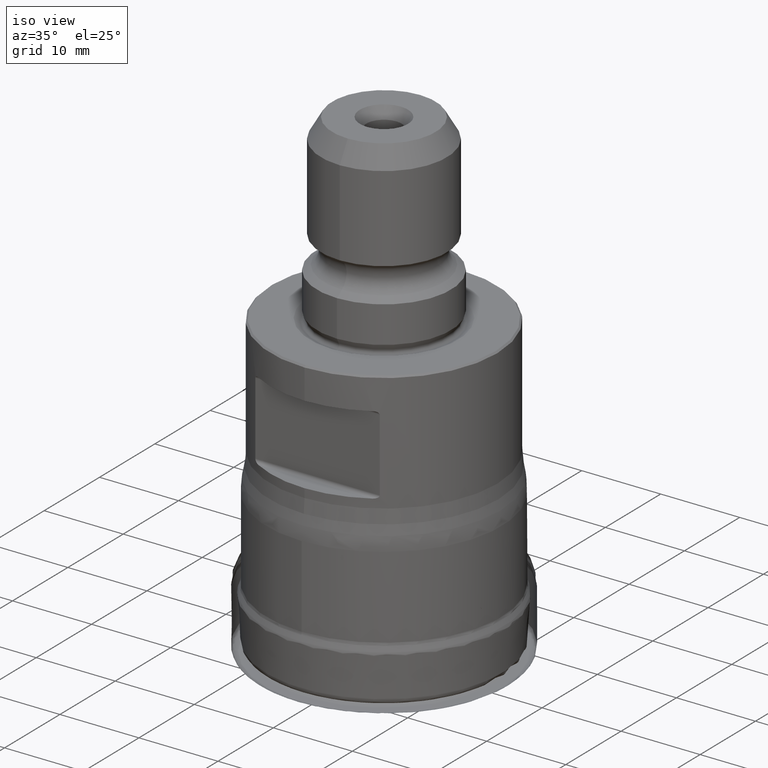
[diagram: clean part render]
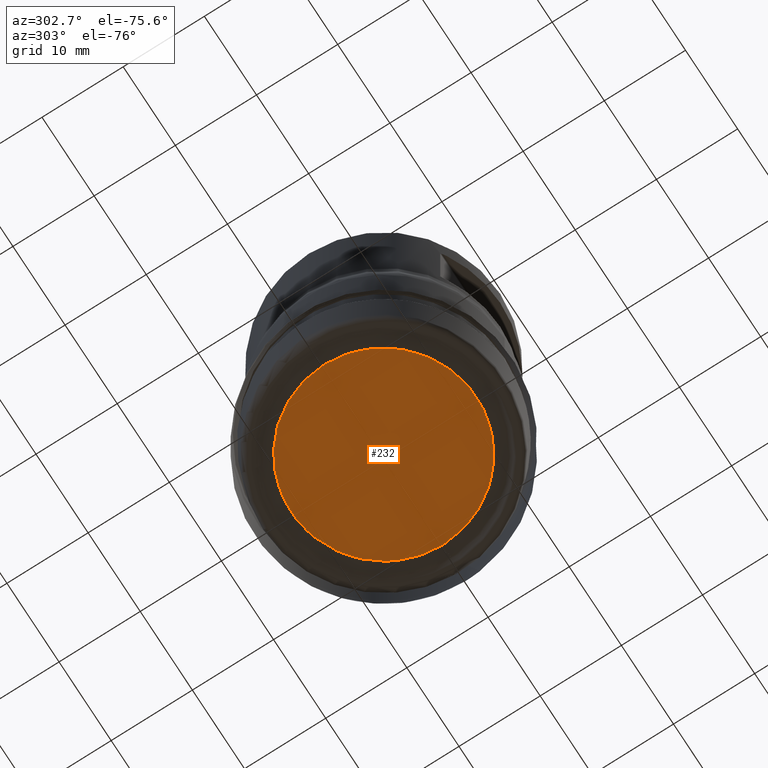
[diagram: tour spotlight — one face highlighted and labeled with its STEP entity id]
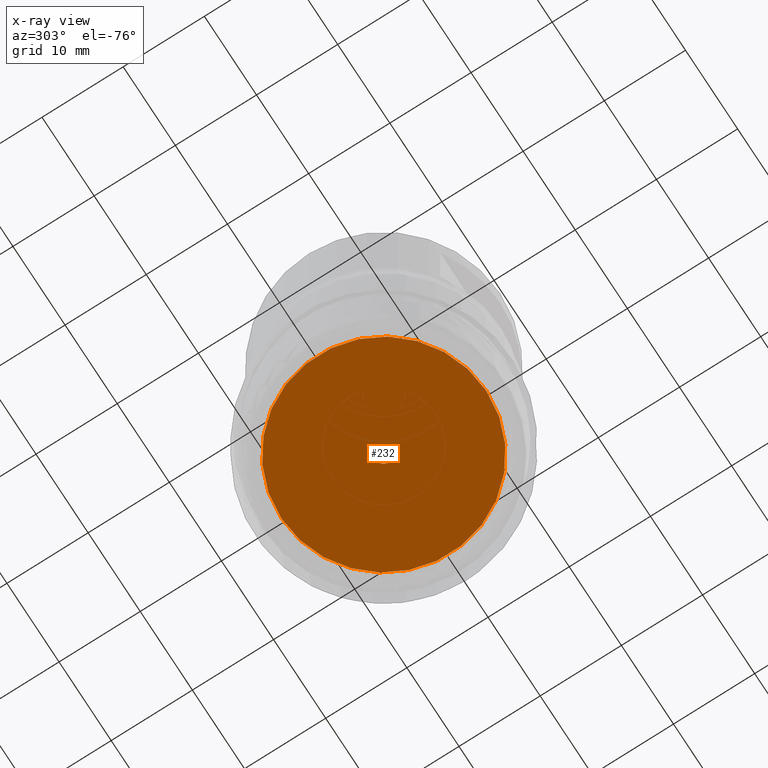
[diagram: x-ray of the same camera — body ghosted, this tour face saturated]
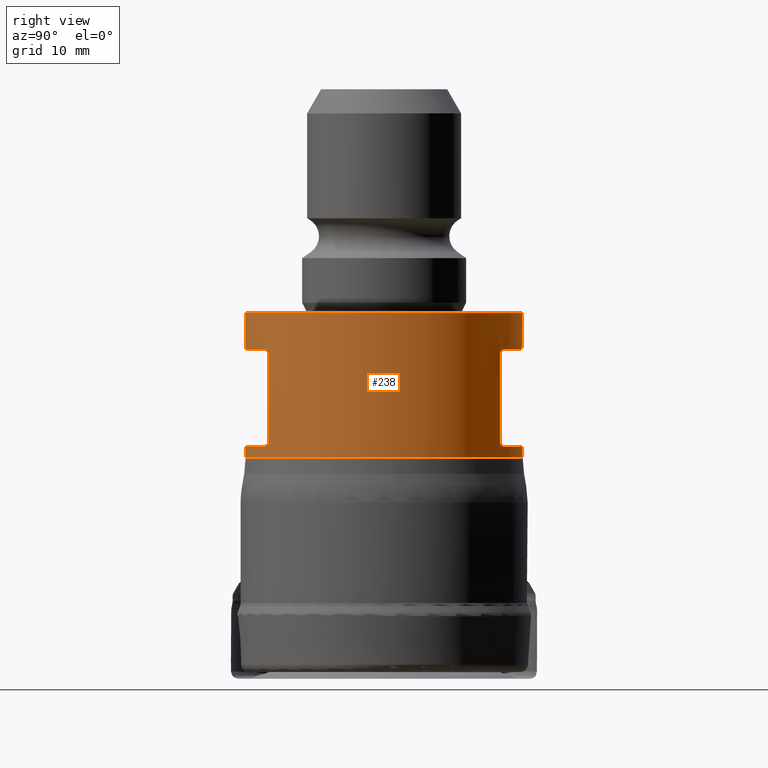
[diagram: tour spotlight — one face highlighted and labeled with its STEP entity id]
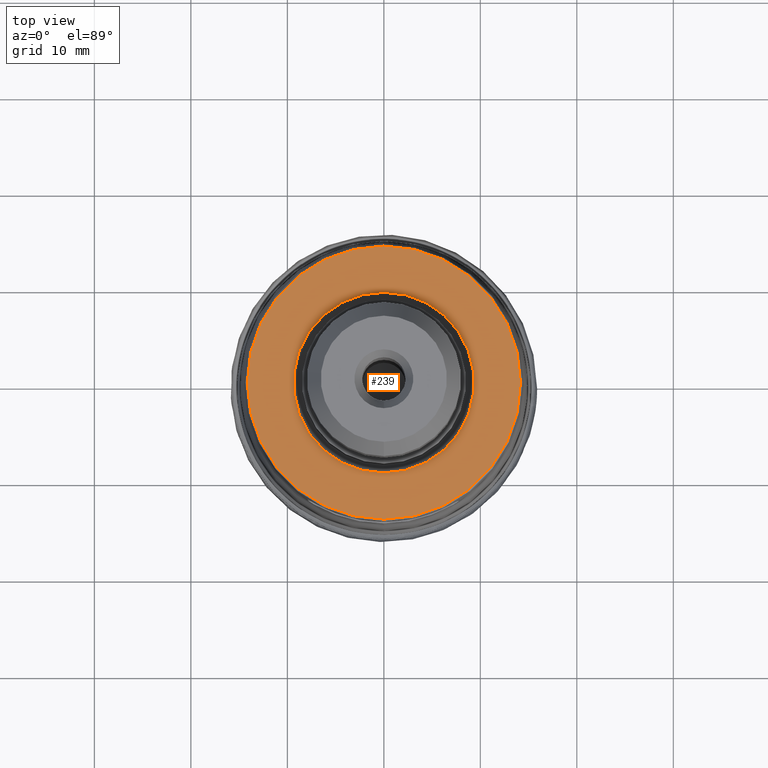
[diagram: tour spotlight — one face highlighted and labeled with its STEP entity id]
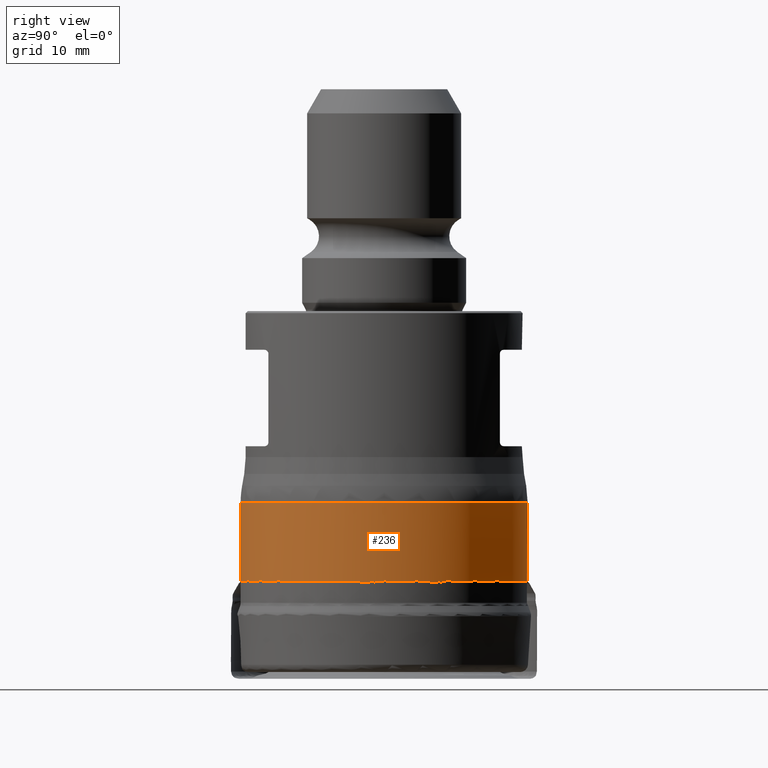
[diagram: tour spotlight — one face highlighted and labeled with its STEP entity id]
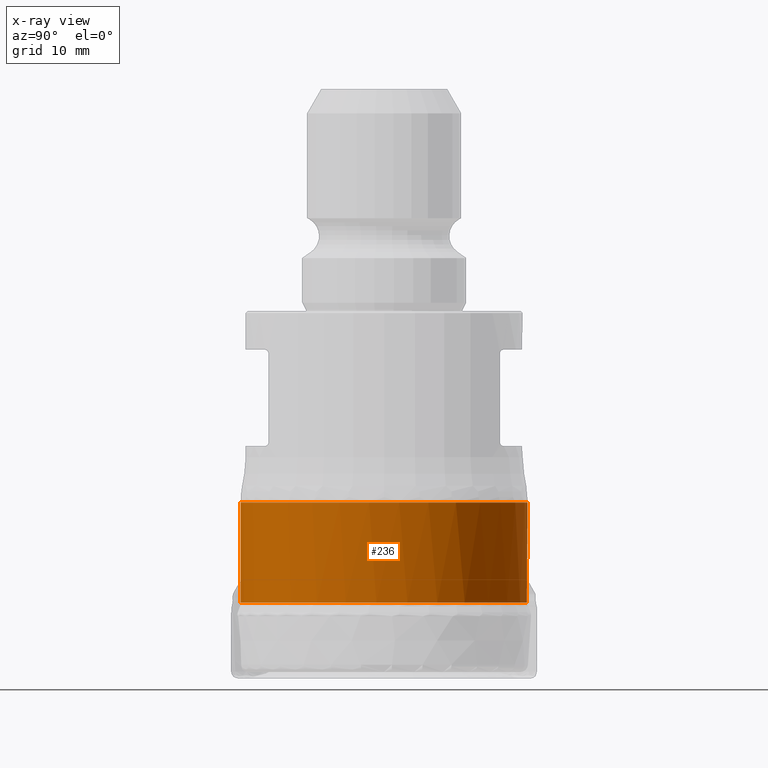
[diagram: x-ray of the same camera — body ghosted, this tour face saturated]
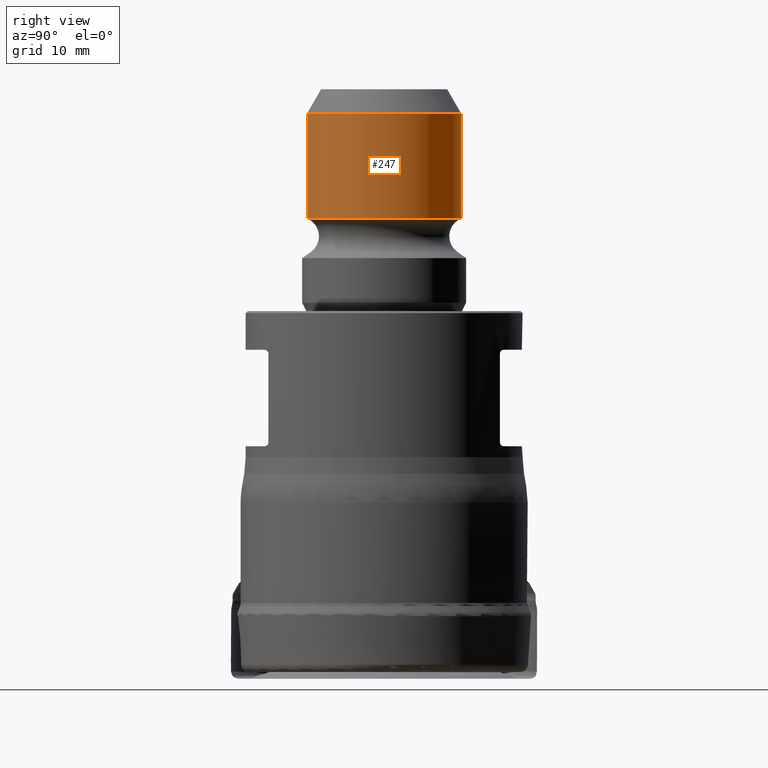
[diagram: tour spotlight — one face highlighted and labeled with its STEP entity id]
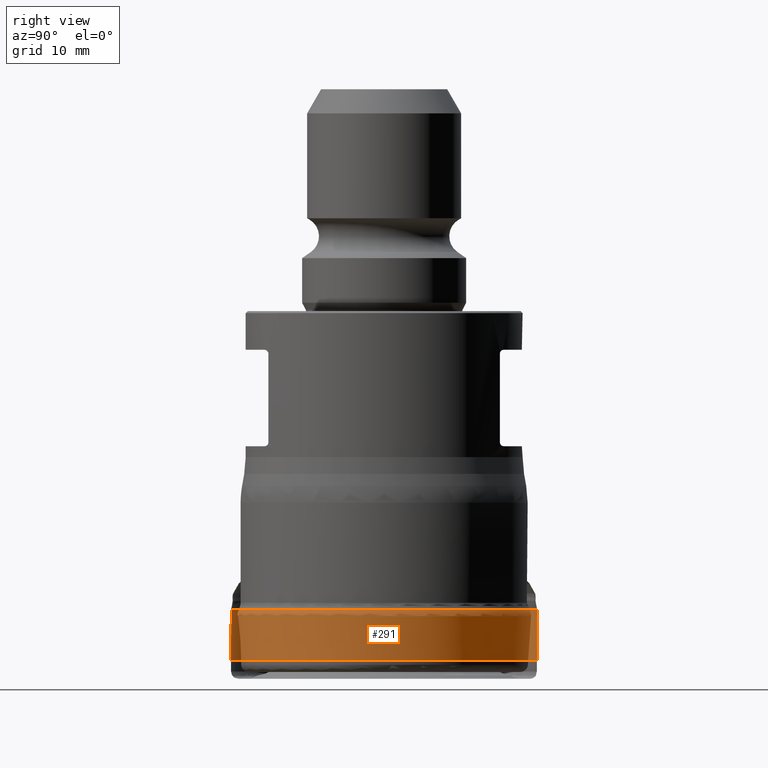
[diagram: tour spotlight — one face highlighted and labeled with its STEP entity id]
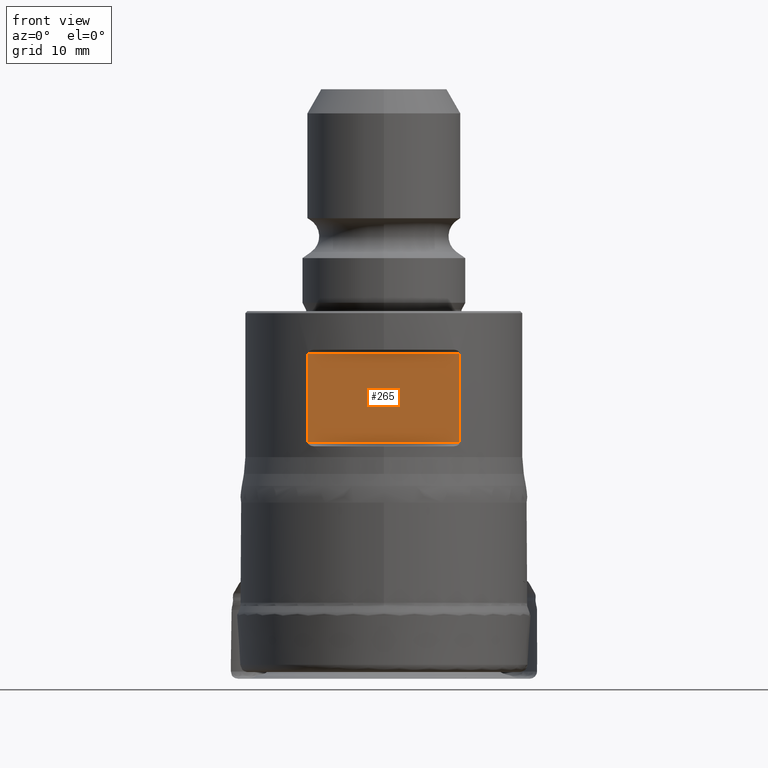
[diagram: tour spotlight — one face highlighted and labeled with its STEP entity id]
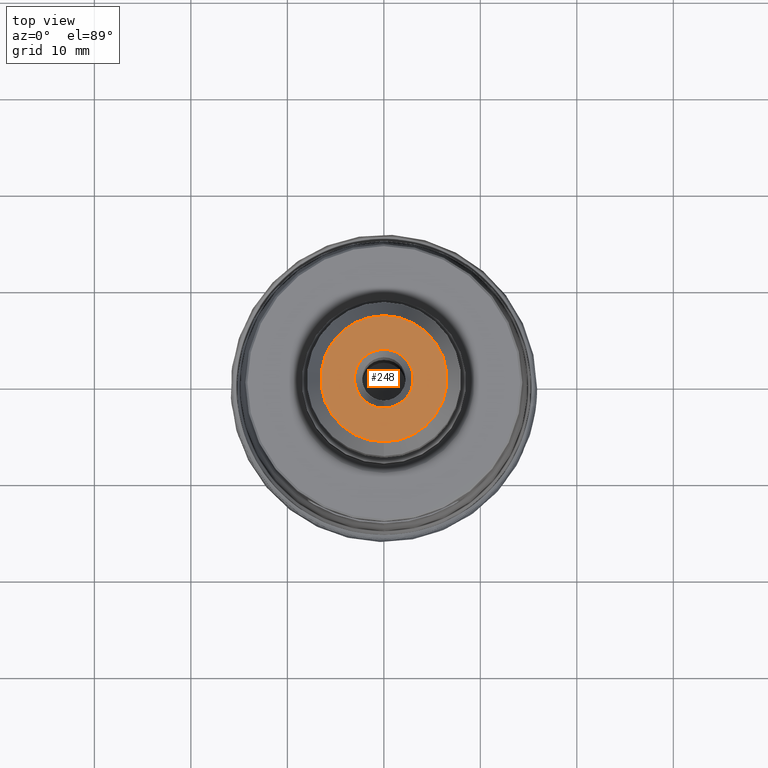
[diagram: tour spotlight — one face highlighted and labeled with its STEP entity id]
A machine part: a face-by-face anatomy tour. The part has 66 B-rep faces; the first image is the clean iso view, then the 8 largest visible faces are spotlighted one at a time (largest first), each with its STEP entity span.

Face 1 — auxiliary view, entity #232. An x-ray twin of the same camera follows (body ghosted, this face saturated) — the face is partly hidden behind the body. In plain terms, the highlighted planar face has unit normal (0, -0, -1).
Definition (entity closure, byte-faithful):
#232=ADVANCED_FACE('',(#308,#309),#298,.T.);
#298=PLANE('',#969);
#308=FACE_BOUND('',#422,.T.);
#309=FACE_BOUND('',#423,.T.);
#422=EDGE_LOOP('',(#544));
#423=EDGE_LOOP('',(#545));
#544=ORIENTED_EDGE('',*,*,#775,.T.);
#545=ORIENTED_EDGE('',*,*,#776,.T.);
#702=VERTEX_POINT('',#1546);
#703=VERTEX_POINT('',#1548);
#775=EDGE_CURVE('',#702,#702,#854,.T.);
#776=EDGE_CURVE('',#703,#703,#855,.T.);
#854=CIRCLE('',#967,1.);
#855=CIRCLE('',#968,12.6336350992954);
#967=AXIS2_PLACEMENT_3D('',#1545,#1069,#1070);
#968=AXIS2_PLACEMENT_3D('',#1547,#1071,#1072);
#969=AXIS2_PLACEMENT_3D('',#1549,#1073,#1074);
#1069=DIRECTION('',(0.,1.17145536458252E-15,1.));
#1070=DIRECTION('',(0.,-1.,1.0842021724855E-15));
#1071=DIRECTION('',(0.,-1.17145536458252E-15,-1.));
#1072=DIRECTION('',(0.,1.,-1.16713435443653E-15));
#1073=DIRECTION('',(0.,-1.17145536458252E-15,-1.));
#1074=DIRECTION('',(0.,1.,-1.17137202715334E-15));
#1545=CARTESIAN_POINT('',(0.,1.28860090104078E-15,1.1));
#1546=CARTESIAN_POINT('',(0.,-0.999999999999999,1.1));
#1547=CARTESIAN_POINT('',(0.,1.28860090104078E-15,1.1));
#1548=CARTESIAN_POINT('',(0.,12.6336350992954,1.09999999999999));
#1549=CARTESIAN_POINT('',(13.2534390020139,1.28860090104078E-15,1.1));

Face 2 — right view, entity #238. In plain terms, the highlighted cylindrical surface (bore or boss wall) has radius 14.351 mm, axis along (0, 0, 1).
Definition (entity closure, byte-faithful):
#179=LINE('',#1593,#194);
#180=LINE('',#1634,#195);
#181=LINE('',#1675,#196);
#182=LINE('',#1716,#197);
#194=VECTOR('',#1105,1.);
#195=VECTOR('',#1108,1.);
#196=VECTOR('',#1111,1.);
#197=VECTOR('',#1114,1.);
#210=CYLINDRICAL_SURFACE('',#991,14.351);
#238=ADVANCED_FACE('',(#320,#321,#322,#323),#210,.T.);
#320=FACE_BOUND('',#434,.T.);
#321=FACE_BOUND('',#435,.T.);
#322=FACE_BOUND('',#436,.T.);
#323=FACE_BOUND('',#437,.T.);
#434=EDGE_LOOP('',(#556,#557,#558,#559,#560,#561,#562,#563));
#435=EDGE_LOOP('',(#564,#565,#566,#567,#568,#569,#570,#571));
#436=EDGE_LOOP('',(#572));
#437=EDGE_LOOP('',(#573));
#556=ORIENTED_EDGE('',*,*,#787,.F.);
#557=ORIENTED_EDGE('',*,*,#788,.F.);
#558=ORIENTED_EDGE('',*,*,#789,.F.);
#559=ORIENTED_EDGE('',*,*,#790,.F.);
#560=ORIENTED_EDGE('',*,*,#791,.F.);
#561=ORIENTED_EDGE('',*,*,#792,.F.);
#562=ORIENTED_EDGE('',*,*,#793,.F.);
#563=ORIENTED_EDGE('',*,*,#794,.F.);
#564=ORIENTED_EDGE('',*,*,#795,.F.);
#565=ORIENTED_EDGE('',*,*,#796,.F.);
#566=ORIENTED_EDGE('',*,*,#797,.F.);
#567=ORIENTED_EDGE('',*,*,#798,.F.);
#568=ORIENTED_EDGE('',*,*,#799,.F.);
#569=ORIENTED_EDGE('',*,*,#800,.F.);
#570=ORIENTED_EDGE('',*,*,#801,.F.);
#571=ORIENTED_EDGE('',*,*,#802,.F.);
#572=ORIENTED_EDGE('',*,*,#803,.T.);
#573=ORIENTED_EDGE('',*,*,#804,.T.);
#714=VERTEX_POINT('',#1591);
#715=VERTEX_POINT('',#1592);
#716=VERTEX_POINT('',#1594);
#717=VERTEX_POINT('',#1614);
#718=VERTEX_POINT('',#1616);
#719=VERTEX_POINT('',#1633);
#720=VERTEX_POINT('',#1635);
#721=VERTEX_POINT('',#1655);
#722=VERTEX_POINT('',#1673);
#723=VERTEX_POINT('',#1674);
#724=VERTEX_POINT('',#1676);
#725=VERTEX_POINT('',#1696);
#726=VERTEX_POINT('',#1698);
#727=VERTEX_POINT('',#1715);
#728=VERTEX_POINT('',#1717);
#729=VERTEX_POINT('',#1737);
#730=VERTEX_POINT('',#1740);
#731=VERTEX_POINT('',#1742);
#787=EDGE_CURVE('',#714,#715,#937,.T.);
#788=EDGE_CURVE('',#716,#714,#179,.T.);
#789=EDGE_CURVE('',#717,#716,#938,.T.);
#790=EDGE_CURVE('',#718,#717,#866,.T.);
#791=EDGE_CURVE('',#719,#718,#939,.T.);
#792=EDGE_CURVE('',#720,#719,#180,.T.);
#793=EDGE_CURVE('',#721,#720,#940,.T.);
#794=EDGE_CURVE('',#715,#721,#867,.T.);
#795=EDGE_CURVE('',#722,#723,#941,.T.);
#796=EDGE_CURVE('',#724,#722,#181,.T.);
#797=EDGE_CURVE('',#725,#724,#942,.T.);
#798=EDGE_CURVE('',#726,#725,#868,.T.);
#799=EDGE_CURVE('',#727,#726,#943,.T.);
#800=EDGE_CURVE('',#728,#727,#182,.T.);
#801=EDGE_CURVE('',#729,#728,#944,.T.);
#802=EDGE_CURVE('',#723,#729,#869,.T.);
#803=EDGE_CURVE('',#730,#730,#870,.T.);
#804=EDGE_CURVE('',#731,#731,#871,.T.);
#866=CIRCLE('',#985,14.351);
#867=CIRCLE('',#986,14.351);
#868=CIRCLE('',#987,14.351);
#869=CIRCLE('',#988,14.351);
#870=CIRCLE('',#989,14.351);
#871=CIRCLE('',#990,14.351);
#937=B_SPLINE_CURVE_WITH_KNOTS('',3,(#1575,#1576,#1577,#1578,#1579,#1580,
#1581,#1582,#1583,#1584,#1585,#1586,#1587,#1588,#1589,#1590),
 .UNSPECIFIED.,.F.,.F.,(4,3,3,3,3,4),(0.,0.08299710580572,0.165298494452553,
0.304093107345201,0.539202657462014,1.),.UNSPECIFIED.);
#938=B_SPLINE_CURVE_WITH_KNOTS('',3,(#1595,#1596,#1597,#1598,#1599,#1600,
#1601,#1602,#1603,#1604,#1605,#1606,#1607,#1608,#1609,#1610,#1611,#1612,
#1613),.UNSPECIFIED.,.F.,.F.,(4,3,3,3,3,3,4),(0.,0.435512366815006,0.601766218517153,
0.769567222104373,0.872602562670462,0.96029760340768,1.),.UNSPECIFIED.);
#939=B_SPLINE_CURVE_WITH_KNOTS('',3,(#1617,#1618,#1619,#1620,#1621,#1622,
#1623,#1624,#1625,#1626,#1627,#1628,#1629,#1630,#1631,#1632),
 .UNSPECIFIED.,.F.,.F.,(4,3,3,3,3,4),(0.,0.0829971058057228,0.16529849445256,
0.304093107345228,0.539202657462062,1.),.UNSPECIFIED.);
#940=B_SPLINE_CURVE_WITH_KNOTS('',3,(#1636,#1637,#1638,#1639,#1640,#1641,
#1642,#1643,#1644,#1645,#1646,#1647,#1648,#1649,#1650,#1651,#1652,#1653,
#1654),.UNSPECIFIED.,.F.,.F.,(4,3,3,3,3,3,4),(0.,0.435512366814994,0.601766218517142,
0.769567222104363,0.872602562670449,0.960297603407666,1.),.UNSPECIFIED.);
#941=B_SPLINE_CURVE_WITH_KNOTS('',3,(#1657,#1658,#1659,#1660,#1661,#1662,
#1663,#1664,#1665,#1666,#1667,#1668,#1669,#1670,#1671,#1672),
 .UNSPECIFIED.,.F.,.F.,(4,3,3,3,3,4),(0.,0.0829971058057196,0.165298494452553,
0.304093107345207,0.539202657462025,1.),.UNSPECIFIED.);
#942=B_SPLINE_CURVE_WITH_KNOTS('',3,(#1677,#1678,#1679,#1680,#1681,#1682,
#1683,#1684,#1685,#1686,#1687,#1688,#1689,#1690,#1691,#1692,#1693,#1694,
#1695),.UNSPECIFIED.,.F.,.F.,(4,3,3,3,3,3,4),(0.,0.435512366815006,0.601766218517161,
0.769567222104385,0.872602562670471,0.960297603407687,1.),.UNSPECIFIED.);
#943=B_SPLINE_CURVE_WITH_KNOTS('',3,(#1699,#1700,#1701,#1702,#1703,#1704,
#1705,#1706,#1707,#1708,#1709,#1710,#1711,#1712,#1713,#1714),
 .UNSPECIFIED.,.F.,.F.,(4,3,3,3,3,4),(0.,0.0829971058057233,0.165298494452562,
0.304093107345216,0.539202657462044,1.),.UNSPECIFIED.);
#944=B_SPLINE_CURVE_WITH_KNOTS('',3,(#1718,#1719,#1720,#1721,#1722,#1723,
#1724,#1725,#1726,#1727,#1728,#1729,#1730,#1731,#1732,#1733,#1734,#1735,
#1736),.UNSPECIFIED.,.F.,.F.,(4,3,3,3,3,3,4),(0.,0.435512366814993,0.601766218517143,
0.769567222104368,0.872602562670451,0.960297603407663,1.),.UNSPECIFIED.);
#985=AXIS2_PLACEMENT_3D('',#1615,#1106,#1107);
#986=AXIS2_PLACEMENT_3D('',#1656,#1109,#1110);
#987=AXIS2_PLACEMENT_3D('',#1697,#1112,#1113);
#988=AXIS2_PLACEMENT_3D('',#1738,#1115,#1116);
#989=AXIS2_PLACEMENT_3D('',#1739,#1117,#1118);
#990=AXIS2_PLACEMENT_3D('',#1741,#1119,#1120);
#991=AXIS2_PLACEMENT_3D('',#1743,#1121,#1122);
#1105=DIRECTION('',(0.,-1.17145536458252E-15,-1.));
#1106=DIRECTION('',(0.,-1.17145536458252E-15,-1.));
#1107=DIRECTION('',(0.,-1.,9.67025838465226E-16));
#1108=DIRECTION('',(0.,1.17145536458252E-15,1.));
#1109=DIRECTION('',(0.,1.17145536458252E-15,1.));
#1110=DIRECTION('',(0.,1.,-1.20878229808153E-15));
#1111=DIRECTION('',(0.,-1.17145536458252E-15,-1.));
#1112=DIRECTION('',(0.,-1.17145536458252E-15,-1.));
#1113=DIRECTION('',(0.,-1.,9.67025838465226E-16));
#1114=DIRECTION('',(0.,1.17145536458252E-15,1.));
#1115=DIRECTION('',(0.,1.17145536458252E-15,1.));
#1116=DIRECTION('',(0.,1.,-1.20878229808153E-15));
#1117=DIRECTION('',(0.,-1.17145536458252E-15,-1.));
#1118=DIRECTION('',(0.,-1.,9.67025838465226E-16));
#1119=DIRECTION('',(0.,1.17145536458252E-15,1.));
#1120=DIRECTION('',(0.,-1.,1.20878229808153E-15));
#1121=DIRECTION('',(0.,1.17145536458252E-15,1.));
#1122=DIRECTION('',(0.,-1.,1.17145536458252E-15));
#1575=CARTESIAN_POINT('',(7.87090852443352,12.,24.5));
#1576=CARTESIAN_POINT('',(7.87090852443352,12.,24.4740322290177));
#1577=CARTESIAN_POINT('',(7.86687749301789,12.0026461944081,24.4477413843241));
#1578=CARTESIAN_POINT('',(7.85957575356462,12.0074256180907,24.4232839347432));
#1579=CARTESIAN_POINT('',(7.8523090087322,12.0121821357081,24.3989437009545));
#1580=CARTESIAN_POINT('',(7.84173683060234,12.0190927297264,24.375826348514));
#1581=CARTESIAN_POINT('',(7.82914982339087,12.0272862293578,24.3547951613284));
#1582=CARTESIAN_POINT('',(7.80804791983691,12.0410224921632,24.3195367336369));
#1583=CARTESIAN_POINT('',(7.78087951408832,12.0586206559712,24.2891084719029));
#1584=CARTESIAN_POINT('',(7.75151901647613,12.0774647147988,24.263418111851));
#1585=CARTESIAN_POINT('',(7.70195909105648,12.1092731045078,24.2200533043128));
#1586=CARTESIAN_POINT('',(7.64468901891067,12.1455636071234,24.1882902735915));
#1587=CARTESIAN_POINT('',(7.58597245533121,12.1821271913799,24.1645429397613));
#1588=CARTESIAN_POINT('',(7.47167272849779,12.2533031498794,24.1183155448944));
#1589=CARTESIAN_POINT('',(7.34735730916321,12.3283335852071,24.1));
#1590=CARTESIAN_POINT('',(7.22434779063137,12.4,24.1));
#1591=CARTESIAN_POINT('',(7.87090852443352,12.,24.5));
#1592=CARTESIAN_POINT('',(7.22434779063137,12.4,24.1));
#1593=CARTESIAN_POINT('',(7.87090852443351,12.,-1.19757962038181E-14));
#1594=CARTESIAN_POINT('',(7.87090852443352,12.,33.7));
#1595=CARTESIAN_POINT('',(7.22434779063137,12.4,34.1));
#1596=CARTESIAN_POINT('',(7.34073896794431,12.3321894883331,34.1));
#1597=CARTESIAN_POINT('',(7.45806175716986,12.2615252914713,34.0834933739461));
#1598=CARTESIAN_POINT('',(7.56716152291767,12.1938208731339,34.0427683877559));
#1599=CARTESIAN_POINT('',(7.60922910680053,12.1677148473498,34.0270653130432));
#1600=CARTESIAN_POINT('',(7.65038818931735,12.1418638913689,34.0075197134806));
#1601=CARTESIAN_POINT('',(7.68905559151899,12.117327473933,33.9830127965426));
#1602=CARTESIAN_POINT('',(7.72792286213209,12.0926642299068,33.9583792054999));
#1603=CARTESIAN_POINT('',(7.76498824079194,12.0688659768356,33.9282809305083));
#1604=CARTESIAN_POINT('',(7.79603384607914,12.0487782480544,33.8914243478773));
#1605=CARTESIAN_POINT('',(7.81516799510663,12.036397700387,33.8687087545371));
#1606=CARTESIAN_POINT('',(7.83226831836126,12.0252656100682,33.8429753481524));
#1607=CARTESIAN_POINT('',(7.84521353459981,12.0168142865126,33.814754995443));
#1608=CARTESIAN_POINT('',(7.85621846575662,12.0096296839382,33.7907644314335));
#1609=CARTESIAN_POINT('',(7.86436481375197,12.004290418292,33.7643991819155));
#1610=CARTESIAN_POINT('',(7.86823088391459,12.0017558614318,33.7374380300775));
#1611=CARTESIAN_POINT('',(7.8700010488916,12.0005953590102,33.7250932756587));
#1612=CARTESIAN_POINT('',(7.87090852443368,12.,33.7125249036555));
#1613=CARTESIAN_POINT('',(7.87090852443369,12.,33.7));
#1614=CARTESIAN_POINT('',(7.22434779063137,12.4,34.1));
#1615=CARTESIAN_POINT('',(0.,3.99466279322641E-14,34.1));
#1616=CARTESIAN_POINT('',(-7.22434779063131,12.4000000000001,34.1));
#1617=CARTESIAN_POINT('',(-7.87090852443347,12.0000000000001,33.7));
#1618=CARTESIAN_POINT('',(-7.87090852443347,12.0000000000001,33.7259677709822));
#1619=CARTESIAN_POINT('',(-7.86687749301785,12.0026461944081,33.7522586156758));
#1620=CARTESIAN_POINT('',(-7.85957575356457,12.0074256180907,33.7767160652568));
#1621=CARTESIAN_POINT('',(-7.85230900873216,12.0121821357081,33.8010562990454));
#1622=CARTESIAN_POINT('',(-7.84173683060229,12.0190927297264,33.824173651486));
#1623=CARTESIAN_POINT('',(-7.82914982339081,12.0272862293578,33.8452048386716));
#1624=CARTESIAN_POINT('',(-7.80804791983685,12.0410224921633,33.880463266363));
#1625=CARTESIAN_POINT('',(-7.78087951408825,12.0586206559712,33.9108915280971));
#1626=CARTESIAN_POINT('',(-7.75151901647606,12.0774647147988,33.936581888149));
#1627=CARTESIAN_POINT('',(-7.7019590910564,12.1092731045079,33.9799466956872));
#1628=CARTESIAN_POINT('',(-7.64468901891059,12.1455636071234,34.0117097264085));
#1629=CARTESIAN_POINT('',(-7.58597245533112,12.1821271913799,34.0354570602387));
#1630=CARTESIAN_POINT('',(-7.47167272849771,12.2533031498795,34.0816844551055));
#1631=CARTESIAN_POINT('',(-7.34735730916314,12.3283335852072,34.1));
#1632=CARTESIAN_POINT('',(-7.22434779063131,12.4000000000001,34.1));
#1633=CARTESIAN_POINT('',(-7.87090852443347,12.0000000000001,33.7));
#1634=CARTESIAN_POINT('',(-7.87090852443346,12.,-1.19757962038181E-14));
#1635=CARTESIAN_POINT('',(-7.87090852443347,12.,24.5));
#1636=CARTESIAN_POINT('',(-7.22434779063131,12.4,24.1));
#1637=CARTESIAN_POINT('',(-7.34073896794426,12.3321894883331,24.1));
#1638=CARTESIAN_POINT('',(-7.45806175716981,12.2615252914713,24.1165066260539));
#1639=CARTESIAN_POINT('',(-7.56716152291761,12.1938208731339,24.157231612244));
#1640=CARTESIAN_POINT('',(-7.60922910680047,12.1677148473498,24.1729346869568));
#1641=CARTESIAN_POINT('',(-7.65038818931729,12.1418638913689,24.1924802865194));
#1642=CARTESIAN_POINT('',(-7.68905559151893,12.117327473933,24.2169872034573));
#1643=CARTESIAN_POINT('',(-7.72792286213204,12.0926642299068,24.2416207945001));
#1644=CARTESIAN_POINT('',(-7.76498824079189,12.0688659768356,24.2717190694917));
#1645=CARTESIAN_POINT('',(-7.79603384607909,12.0487782480544,24.3085756521226));
#1646=CARTESIAN_POINT('',(-7.81516799510658,12.036397700387,24.3312912454629));
#1647=CARTESIAN_POINT('',(-7.83226831836121,12.0252656100682,24.3570246518476));
#1648=CARTESIAN_POINT('',(-7.84521353459976,12.0168142865126,24.385245004557));
#1649=CARTESIAN_POINT('',(-7.85621846575656,12.0096296839382,24.4092355685665));
#1650=CARTESIAN_POINT('',(-7.86436481375192,12.0042904182921,24.4356008180844));
#1651=CARTESIAN_POINT('',(-7.86823088391453,12.0017558614319,24.4625619699224));
#1652=CARTESIAN_POINT('',(-7.87000104889154,12.0005953590102,24.4749067243413));
#1653=CARTESIAN_POINT('',(-7.87090852443346,12.0000000000001,24.4874750963445));
#1654=CARTESIAN_POINT('',(-7.87090852443347,12.,24.5));
#1655=CARTESIAN_POINT('',(-7.22434779063131,12.4,24.1));
#1656=CARTESIAN_POINT('',(0.,2.82320742864388E-14,24.1));
#1657=CARTESIAN_POINT('',(-7.87090852443349,-12.,24.5));
#1658=CARTESIAN_POINT('',(-7.87090852443349,-12.,24.4740322290178));
#1659=CARTESIAN_POINT('',(-7.86687749301787,-12.002646194408,24.4477413843242));
#1660=CARTESIAN_POINT('',(-7.85957575356459,-12.0074256180906,24.4232839347432));
#1661=CARTESIAN_POINT('',(-7.85230900873218,-12.012182135708,24.3989437009546));
#1662=CARTESIAN_POINT('',(-7.84173683060232,-12.0190927297264,24.3758263485141));
#1663=CARTESIAN_POINT('',(-7.82914982339084,-12.0272862293577,24.3547951613284));
#1664=CARTESIAN_POINT('',(-7.80804791983688,-12.0410224921632,24.319536733637));
#1665=CARTESIAN_POINT('',(-7.78087951408829,-12.0586206559711,24.2891084719029));
#1666=CARTESIAN_POINT('',(-7.7515190164761,-12.0774647147987,24.263418111851));
#1667=CARTESIAN_POINT('',(-7.70195909105645,-12.1092731045078,24.2200533043128));
#1668=CARTESIAN_POINT('',(-7.64468901891063,-12.1455636071233,24.1882902735915));
#1669=CARTESIAN_POINT('',(-7.58597245533117,-12.1821271913798,24.1645429397613));
#1670=CARTESIAN_POINT('',(-7.47167272849776,-12.2533031498794,24.1183155448945));
#1671=CARTESIAN_POINT('',(-7.34735730916317,-12.3283335852071,24.1));
#1672=CARTESIAN_POINT('',(-7.22434779063134,-12.4,24.1));
#1673=CARTESIAN_POINT('',(-7.87090852443349,-12.,24.5));
#1674=CARTESIAN_POINT('',(-7.22434779063134,-12.4,24.1));
#1675=CARTESIAN_POINT('',(-7.87090852443349,-12.,1.61391325461625E-14));
#1676=CARTESIAN_POINT('',(-7.87090852443349,-12.,33.7));
#1677=CARTESIAN_POINT('',(-7.22434779063134,-12.4,34.1));
#1678=CARTESIAN_POINT('',(-7.34073896794428,-12.332189488333,34.1));
#1679=CARTESIAN_POINT('',(-7.45806175716983,-12.2615252914712,34.0834933739461));
#1680=CARTESIAN_POINT('',(-7.56716152291764,-12.1938208731338,34.042768387756));
#1681=CARTESIAN_POINT('',(-7.6092291068005,-12.1677148473497,34.0270653130432));
#1682=CARTESIAN_POINT('',(-7.65038818931732,-12.1418638913688,34.0075197134806));
#1683=CARTESIAN_POINT('',(-7.68905559151896,-12.1173274739329,33.9830127965427));
#1684=CARTESIAN_POINT('',(-7.72792286213207,-12.0926642299067,33.9583792054999));
#1685=CARTESIAN_POINT('',(-7.76498824079192,-12.0688659768355,33.9282809305083));
#1686=CARTESIAN_POINT('',(-7.79603384607912,-12.0487782480544,33.8914243478773));
#1687=CARTESIAN_POINT('',(-7.81516799510661,-12.0363977003869,33.8687087545371));
#1688=CARTESIAN_POINT('',(-7.83226831836124,-12.0252656100681,33.8429753481524));
#1689=CARTESIAN_POINT('',(-7.84521353459979,-12.0168142865125,33.814754995443));
#1690=CARTESIAN_POINT('',(-7.85621846575659,-12.0096296839381,33.7907644314335));
#1691=CARTESIAN_POINT('',(-7.86436481375195,-12.004290418292,33.7643991819156));
#1692=CARTESIAN_POINT('',(-7.86823088391456,-12.0017558614318,33.7374380300775));
#1693=CARTESIAN_POINT('',(-7.87000104889157,-12.0005953590101,33.7250932756587));
#1694=CARTESIAN_POINT('',(-7.87090852443366,-11.9999999999999,33.7125249036555));
#1695=CARTESIAN_POINT('',(-7.87090852443366,-11.9999999999999,33.7000000000001));
#1696=CARTESIAN_POINT('',(-7.22434779063134,-12.4,34.1));
#1697=CARTESIAN_POINT('',(0.,3.99466279322641E-14,34.1));
#1698=CARTESIAN_POINT('',(7.22434779063134,-12.4,34.1));
#1699=CARTESIAN_POINT('',(7.8709085244335,-12.,33.7));
#1700=CARTESIAN_POINT('',(7.8709085244335,-12.,33.7259677709823));
#1701=CARTESIAN_POINT('',(7.86687749301787,-12.002646194408,33.7522586156758));
#1702=CARTESIAN_POINT('',(7.8595757535646,-12.0074256180906,33.7767160652568));
#1703=CARTESIAN_POINT('',(7.85230900873218,-12.012182135708,33.8010562990455));
#1704=CARTESIAN_POINT('',(7.84173683060232,-12.0190927297263,33.824173651486));
#1705=CARTESIAN_POINT('',(7.82914982339084,-12.0272862293577,33.8452048386716));
#1706=CARTESIAN_POINT('',(7.80804791983688,-12.0410224921632,33.8804632663631));
#1707=CARTESIAN_POINT('',(7.78087951408829,-12.0586206559711,33.9108915280971));
#1708=CARTESIAN_POINT('',(7.7515190164761,-12.0774647147987,33.9365818881491));
#1709=CARTESIAN_POINT('',(7.70195909105644,-12.1092731045078,33.9799466956872));
#1710=CARTESIAN_POINT('',(7.64468901891063,-12.1455636071233,34.0117097264085));
#1711=CARTESIAN_POINT('',(7.58597245533117,-12.1821271913798,34.0354570602387));
#1712=CARTESIAN_POINT('',(7.47167272849776,-12.2533031498794,34.0816844551056));
#1713=CARTESIAN_POINT('',(7.34735730916317,-12.3283335852071,34.1));
#1714=CARTESIAN_POINT('',(7.22434779063134,-12.4,34.1));
#1715=CARTESIAN_POINT('',(7.8709085244335,-12.,33.7));
#1716=CARTESIAN_POINT('',(7.87090852443349,-12.,1.61391325461625E-14));
#1717=CARTESIAN_POINT('',(7.87090852443349,-12.,24.5));
#1718=CARTESIAN_POINT('',(7.22434779063134,-12.4,24.1));
#1719=CARTESIAN_POINT('',(7.34073896794429,-12.3321894883331,24.1));
#1720=CARTESIAN_POINT('',(7.45806175716984,-12.2615252914712,24.1165066260539));
#1721=CARTESIAN_POINT('',(7.56716152291764,-12.1938208731338,24.1572316122441));
#1722=CARTESIAN_POINT('',(7.6092291068005,-12.1677148473497,24.1729346869568));
#1723=CARTESIAN_POINT('',(7.65038818931732,-12.1418638913689,24.1924802865194));
#1724=CARTESIAN_POINT('',(7.68905559151896,-12.1173274739329,24.2169872034574));
#1725=CARTESIAN_POINT('',(7.72792286213207,-12.0926642299068,24.2416207945001));
#1726=CARTESIAN_POINT('',(7.76498824079192,-12.0688659768355,24.2717190694917));
#1727=CARTESIAN_POINT('',(7.79603384607912,-12.0487782480544,24.3085756521227));
#1728=CARTESIAN_POINT('',(7.81516799510661,-12.0363977003869,24.3312912454629));
#1729=CARTESIAN_POINT('',(7.83226831836124,-12.0252656100681,24.3570246518476));
#1730=CARTESIAN_POINT('',(7.84521353459979,-12.0168142865125,24.385245004557));
#1731=CARTESIAN_POINT('',(7.85621846575659,-12.0096296839381,24.4092355685666));
#1732=CARTESIAN_POINT('',(7.86436481375195,-12.004290418292,24.4356008180845));
#1733=CARTESIAN_POINT('',(7.86823088391456,-12.0017558614318,24.4625619699225));
#1734=CARTESIAN_POINT('',(7.87000104889157,-12.0005953590101,24.4749067243413));
#1735=CARTESIAN_POINT('',(7.87090852443349,-12.,24.4874750963446));
#1736=CARTESIAN_POINT('',(7.87090852443349,-12.,24.5));
#1737=CARTESIAN_POINT('',(7.22434779063134,-12.4,24.1));
#1738=CARTESIAN_POINT('',(0.,2.82320742864388E-14,24.1));
#1739=CARTESIAN_POINT('',(0.,4.43981583176777E-14,37.9));
#1740=CARTESIAN_POINT('',(0.,-14.351,37.9));
#1741=CARTESIAN_POINT('',(0.,2.69140541995498E-14,22.9748866352592));
#1742=CARTESIAN_POINT('',(0.,-14.351,22.9748866352593));
#1743=CARTESIAN_POINT('',(0.,0.,0.));

Face 3 — top view, entity #239. In plain terms, the highlighted planar face has unit normal (0, 0, 1).
Definition (entity closure, byte-faithful):
#239=ADVANCED_FACE('',(#324,#325),#300,.T.);
#300=PLANE('',#994);
#324=FACE_BOUND('',#438,.T.);
#325=FACE_BOUND('',#439,.T.);
#438=EDGE_LOOP('',(#574));
#439=EDGE_LOOP('',(#575));
#574=ORIENTED_EDGE('',*,*,#805,.T.);
#575=ORIENTED_EDGE('',*,*,#806,.F.);
#732=VERTEX_POINT('',#1745);
#733=VERTEX_POINT('',#1747);
#805=EDGE_CURVE('',#732,#732,#872,.T.);
#806=EDGE_CURVE('',#733,#733,#873,.T.);
#872=CIRCLE('',#992,14.151);
#873=CIRCLE('',#993,9.36627222808008);
#992=AXIS2_PLACEMENT_3D('',#1744,#1123,#1124);
#993=AXIS2_PLACEMENT_3D('',#1746,#1125,#1126);
#994=AXIS2_PLACEMENT_3D('',#1748,#1127,#1128);
#1123=DIRECTION('',(0.,1.17145536458252E-15,1.));
#1124=DIRECTION('',(0.,-1.,9.80693082313226E-16));
#1125=DIRECTION('',(0.,1.17145536458252E-15,1.));
#1126=DIRECTION('',(0.,-1.,1.48167675141972E-15));
#1127=DIRECTION('',(0.,1.17145536458252E-15,1.));
#1128=DIRECTION('',(0.,-1.,1.17267306976032E-15));
#1744=CARTESIAN_POINT('',(0.,4.46324493905942E-14,38.1));
#1745=CARTESIAN_POINT('',(0.,-14.151,38.1));
#1746=CARTESIAN_POINT('',(0.,4.46324493905942E-14,38.1));
#1747=CARTESIAN_POINT('',(0.,-9.36627222808004,38.1));
#1748=CARTESIAN_POINT('',(9.36627222808008,4.46324493905942E-14,38.1));

Face 4 — right view, entity #236. An x-ray twin of the same camera follows (body ghosted, this face saturated) — the face is partly hidden behind the body. In plain terms, the highlighted cylindrical surface (bore or boss wall) has radius 14.875 mm, axis along (0, 0, 1).
Definition (entity closure, byte-faithful):
#209=CYLINDRICAL_SURFACE('',#981,14.875);
#236=ADVANCED_FACE('',(#316,#317),#209,.T.);
#316=FACE_BOUND('',#430,.T.);
#317=FACE_BOUND('',#431,.T.);
#430=EDGE_LOOP('',(#552));
#431=EDGE_LOOP('',(#553));
#552=ORIENTED_EDGE('',*,*,#783,.T.);
#553=ORIENTED_EDGE('',*,*,#784,.T.);
#710=VERTEX_POINT('',#1566);
#711=VERTEX_POINT('',#1568);
#783=EDGE_CURVE('',#710,#710,#862,.T.);
#784=EDGE_CURVE('',#711,#711,#863,.T.);
#862=CIRCLE('',#979,14.875);
#863=CIRCLE('',#980,14.875);
#979=AXIS2_PLACEMENT_3D('',#1565,#1093,#1094);
#980=AXIS2_PLACEMENT_3D('',#1567,#1095,#1096);
#981=AXIS2_PLACEMENT_3D('',#1569,#1097,#1098);
#1093=DIRECTION('',(0.,-1.17145536458252E-15,-1.));
#1094=DIRECTION('',(0.,1.,-1.16620065611886E-15));
#1095=DIRECTION('',(0.,1.17145536458252E-15,1.));
#1096=DIRECTION('',(0.,-1.,1.16620065611886E-15));
#1097=DIRECTION('',(0.,1.17145536458252E-15,1.));
#1098=DIRECTION('',(0.,-1.,1.17145536458252E-15));
#1565=CARTESIAN_POINT('',(0.,2.13829984748929E-14,18.2533616912611));
#1566=CARTESIAN_POINT('',(0.,14.875,18.253361691261));
#1567=CARTESIAN_POINT('',(0.,9.22595853037556E-15,7.87563812443119));
#1568=CARTESIAN_POINT('',(0.,-14.875,7.8756381244312));
#1569=CARTESIAN_POINT('',(0.,0.,0.));

Face 5 — right view, entity #247. In plain terms, the highlighted cylindrical surface (bore or boss wall) has radius 7.981 mm, axis along (0, 0, 1).
Definition (entity closure, byte-faithful):
#212=CYLINDRICAL_SURFACE('',#1010,7.981);
#247=ADVANCED_FACE('',(#340,#341),#212,.T.);
#340=FACE_BOUND('',#454,.T.);
#341=FACE_BOUND('',#455,.T.);
#454=EDGE_LOOP('',(#590));
#455=EDGE_LOOP('',(#591));
#590=ORIENTED_EDGE('',*,*,#814,.T.);
#591=ORIENTED_EDGE('',*,*,#813,.T.);
#740=VERTEX_POINT('',#1768);
#741=VERTEX_POINT('',#1771);
#813=EDGE_CURVE('',#740,#740,#880,.T.);
#814=EDGE_CURVE('',#741,#741,#881,.T.);
#880=CIRCLE('',#1007,7.981);
#881=CIRCLE('',#1009,7.981);
#1007=AXIS2_PLACEMENT_3D('',#1767,#1153,#1154);
#1009=AXIS2_PLACEMENT_3D('',#1770,#1157,#1158);
#1010=AXIS2_PLACEMENT_3D('',#1772,#1159,#1160);
#1153=DIRECTION('',(0.,1.17145536458252E-15,1.));
#1154=DIRECTION('',(0.,-1.,8.69426626225689E-16));
#1157=DIRECTION('',(0.,-1.17145536458252E-15,-1.));
#1158=DIRECTION('',(0.,-1.,8.69426626225689E-16));
#1159=DIRECTION('',(0.,1.17145536458252E-15,1.));
#1160=DIRECTION('',(0.,-1.,1.17145536458252E-15));
#1767=CARTESIAN_POINT('',(0.,5.59158090749059E-14,47.7319160127222));
#1768=CARTESIAN_POINT('',(0.,-7.98099999999995,47.7319160127222));
#1770=CARTESIAN_POINT('',(0.,6.86472843645359E-14,58.6));
#1771=CARTESIAN_POINT('',(0.,-7.98099999999993,58.6));
#1772=CARTESIAN_POINT('',(0.,0.,0.));

Face 6 — right view, entity #291. In plain terms, the highlighted face is a SurfaceOfRevolution surface.
Definition (entity closure, byte-faithful):
#125=SURFACE_OF_REVOLUTION('',#960,#149);
#149=AXIS1_PLACEMENT('',#2000,#1290);
#291=ADVANCED_FACE('',(#408,#409),#125,.F.);
#408=FACE_BOUND('',#530,.T.);
#409=FACE_BOUND('',#531,.T.);
#530=EDGE_LOOP('',(#688));
#531=EDGE_LOOP('',(#689));
#688=ORIENTED_EDGE('',*,*,#847,.T.);
#689=ORIENTED_EDGE('',*,*,#848,.F.);
#768=VERTEX_POINT('',#1985);
#769=VERTEX_POINT('',#1993);
#847=EDGE_CURVE('',#768,#768,#906,.T.);
#848=EDGE_CURVE('',#769,#769,#907,.T.);
#906=CIRCLE('',#1060,15.8749999999999);
#907=CIRCLE('',#1061,15.8823520474859);
#960=B_SPLINE_CURVE_WITH_KNOTS('',5,(#1994,#1995,#1996,#1997,#1998,#1999),
 .UNSPECIFIED.,.F.,.F.,(6,6),(0.,1.),.UNSPECIFIED.);
#1060=AXIS2_PLACEMENT_3D('',#1984,#1285,#1286);
#1061=AXIS2_PLACEMENT_3D('',#1992,#1288,#1289);
#1285=DIRECTION('',(0.,0.,1.));
#1286=DIRECTION('',(1.,0.,0.));
#1288=DIRECTION('',(0.,0.,1.));
#1289=DIRECTION('',(1.,0.,0.));
#1290=DIRECTION('',(0.,0.,1.));
#1984=CARTESIAN_POINT('',(0.,0.,7.13108277797735));
#1985=CARTESIAN_POINT('',(15.8749999999999,0.,7.13108277797735));
#1992=CARTESIAN_POINT('',(0.,0.,1.90874240069725));
#1993=CARTESIAN_POINT('',(15.8823520474859,0.,1.90874240069725));
#1994=CARTESIAN_POINT('',(15.7779259104229,-1.81828491293051,1.90874240184874));
#1995=CARTESIAN_POINT('',(15.8136146791612,-1.53847858271826,2.95282837098492));
#1996=CARTESIAN_POINT('',(15.8405845758965,-1.25861182201508,3.99719651001369));
#1997=CARTESIAN_POINT('',(15.8588834094159,-0.978709639517597,5.04175383649998));
#1998=CARTESIAN_POINT('',(15.8685215650097,-0.698795685147655,6.08641268529297));
#1999=CARTESIAN_POINT('',(15.8694723448255,-0.418894374296645,7.13108277797735));
#2000=CARTESIAN_POINT('',(0.,0.,0.));

Face 7 — front view, entity #265. In plain terms, the highlighted planar face has unit normal (-0, 1, -0).
Definition (entity closure, byte-faithful):
#159=FACE_OUTER_BOUND('',#487,.T.);
#181=LINE('',#1675,#196);
#182=LINE('',#1716,#197);
#184=LINE('',#1834,#199);
#185=LINE('',#1835,#200);
#196=VECTOR('',#1111,1.);
#197=VECTOR('',#1114,1.);
#199=VECTOR('',#1208,1.);
#200=VECTOR('',#1209,1.);
#265=ADVANCED_FACE('',(#159),#303,.F.);
#303=PLANE('',#1034);
#487=EDGE_LOOP('',(#624,#625,#626,#627));
#624=ORIENTED_EDGE('',*,*,#796,.T.);
#625=ORIENTED_EDGE('',*,*,#823,.T.);
#626=ORIENTED_EDGE('',*,*,#800,.T.);
#627=ORIENTED_EDGE('',*,*,#824,.T.);
#722=VERTEX_POINT('',#1673);
#724=VERTEX_POINT('',#1676);
#727=VERTEX_POINT('',#1715);
#728=VERTEX_POINT('',#1717);
#796=EDGE_CURVE('',#724,#722,#181,.T.);
#800=EDGE_CURVE('',#728,#727,#182,.T.);
#823=EDGE_CURVE('',#722,#728,#184,.T.);
#824=EDGE_CURVE('',#727,#724,#185,.T.);
#1034=AXIS2_PLACEMENT_3D('',#1836,#1210,#1211);
#1111=DIRECTION('',(0.,-1.17145536458252E-15,-1.));
#1114=DIRECTION('',(0.,1.17145536458252E-15,1.));
#1208=DIRECTION('',(1.,1.47016425225752E-16,-1.72223180012452E-31));
#1209=DIRECTION('',(-1.,-1.47016425225752E-16,1.72223180012452E-31));
#1210=DIRECTION('',(-1.47016425225752E-16,1.,-1.3449277121802E-15));
#1211=DIRECTION('',(0.,1.34441069388203E-15,1.));
#1673=CARTESIAN_POINT('',(-7.87090852443349,-12.,24.5));
#1675=CARTESIAN_POINT('',(-7.87090852443349,-12.,1.61391325461625E-14));
#1676=CARTESIAN_POINT('',(-7.87090852443349,-12.,33.7));
#1715=CARTESIAN_POINT('',(7.8709085244335,-12.,33.7));
#1716=CARTESIAN_POINT('',(7.87090852443349,-12.,1.61391325461625E-14));
#1717=CARTESIAN_POINT('',(7.87090852443349,-12.,24.5));
#1834=CARTESIAN_POINT('',(-15.,-12.,24.5));
#1835=CARTESIAN_POINT('',(-15.,-12.,33.7));
#1836=CARTESIAN_POINT('',(-15.,-12.,24.1));

Face 8 — top view, entity #248. In plain terms, the highlighted planar face has unit normal (0, 0, 1).
Definition (entity closure, byte-faithful):
#248=ADVANCED_FACE('',(#342,#343),#301,.T.);
#301=PLANE('',#1013);
#342=FACE_BOUND('',#456,.T.);
#343=FACE_BOUND('',#457,.T.);
#456=EDGE_LOOP('',(#592));
#457=EDGE_LOOP('',(#593));
#592=ORIENTED_EDGE('',*,*,#815,.T.);
#593=ORIENTED_EDGE('',*,*,#816,.T.);
#742=VERTEX_POINT('',#1774);
#743=VERTEX_POINT('',#1776);
#815=EDGE_CURVE('',#742,#742,#882,.T.);
#816=EDGE_CURVE('',#743,#743,#883,.T.);
#882=CIRCLE('',#1011,6.53762432702594);
#883=CIRCLE('',#1012,3.05);
#1011=AXIS2_PLACEMENT_3D('',#1773,#1161,#1162);
#1012=AXIS2_PLACEMENT_3D('',#1775,#1163,#1164);
#1013=AXIS2_PLACEMENT_3D('',#1777,#1165,#1166);
#1161=DIRECTION('',(0.,1.17145536458252E-15,1.));
#1162=DIRECTION('',(0.,-1.,1.06137850032503E-15));
#1163=DIRECTION('',(0.,-1.17145536458252E-15,-1.));
#1164=DIRECTION('',(0.,-1.,2.27504718160893E-15));
#1165=DIRECTION('',(0.,1.17145536458252E-15,1.));
#1166=DIRECTION('',(0.,-1.,1.17267306976032E-15));
#1773=CARTESIAN_POINT('',(0.,7.15759227759922E-14,61.1));
#1774=CARTESIAN_POINT('',(0.,-6.53762432702587,61.1));
#1775=CARTESIAN_POINT('',(0.,7.15759227759922E-14,61.1));
#1776=CARTESIAN_POINT('',(0.,-3.04999999999993,61.1));
#1777=CARTESIAN_POINT('',(0.,7.15759227759922E-14,61.1));